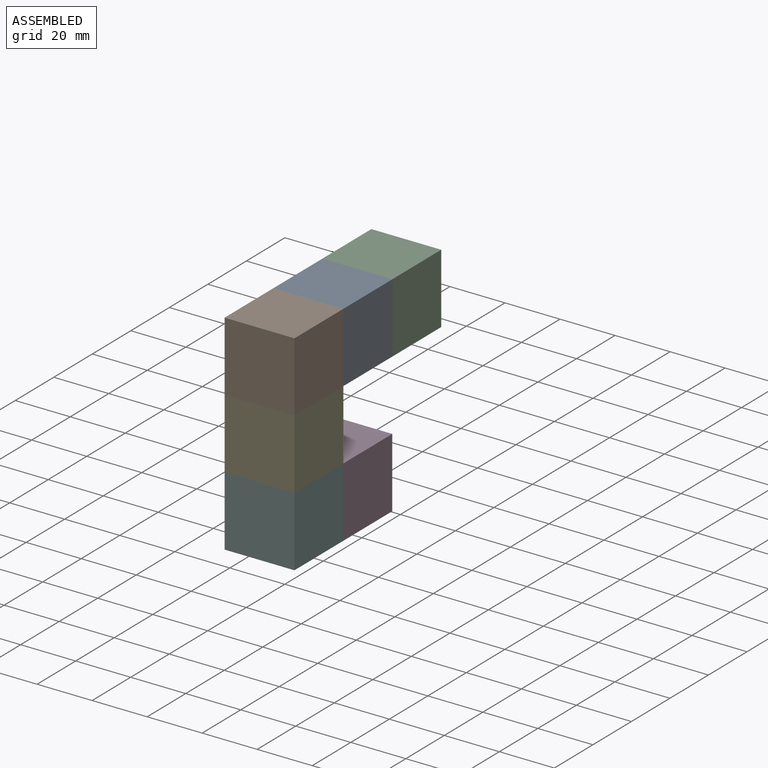
[diagram: assembled view]
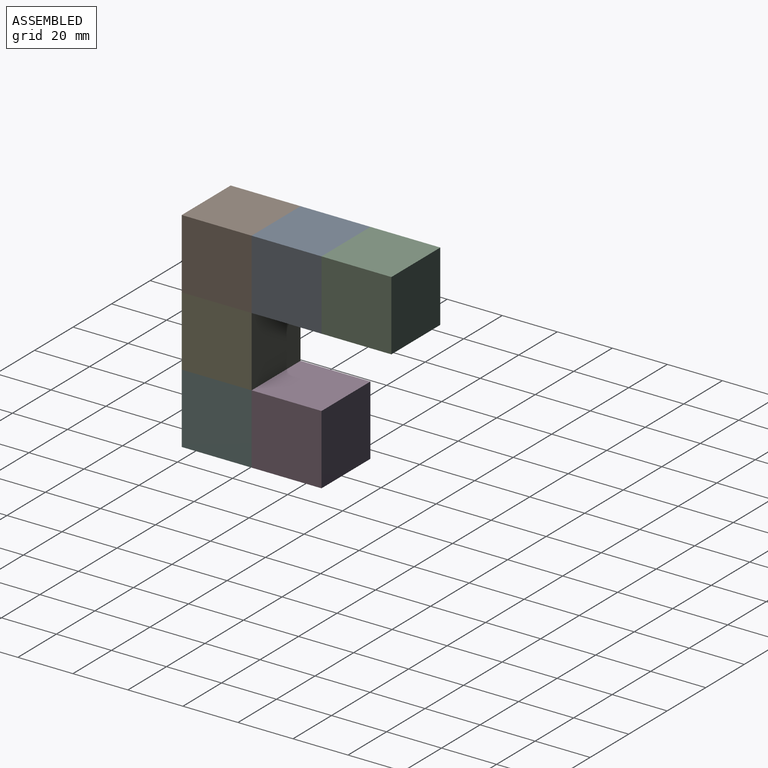
[diagram: assembled view, second angle]
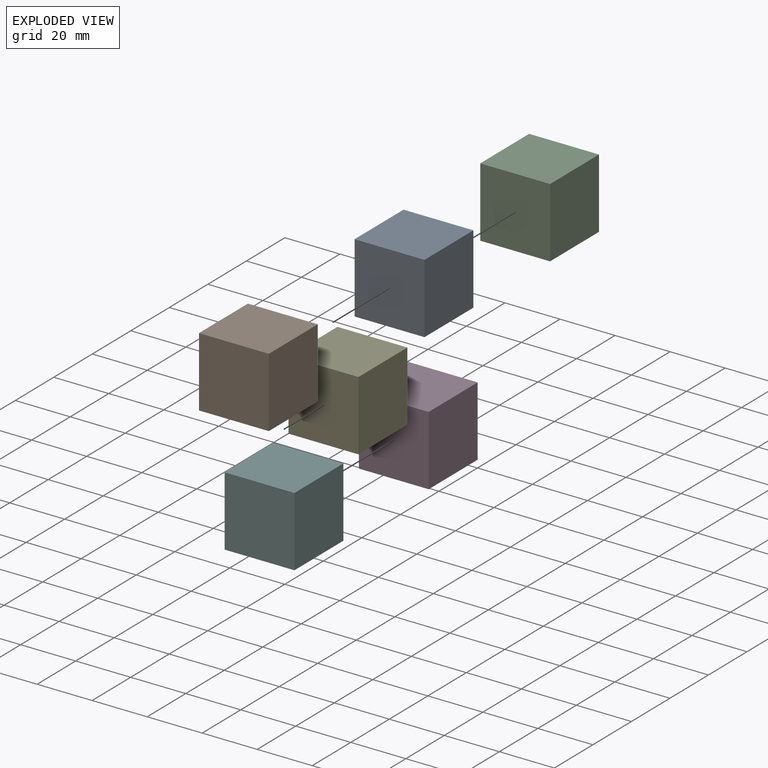
[diagram: exploded view]
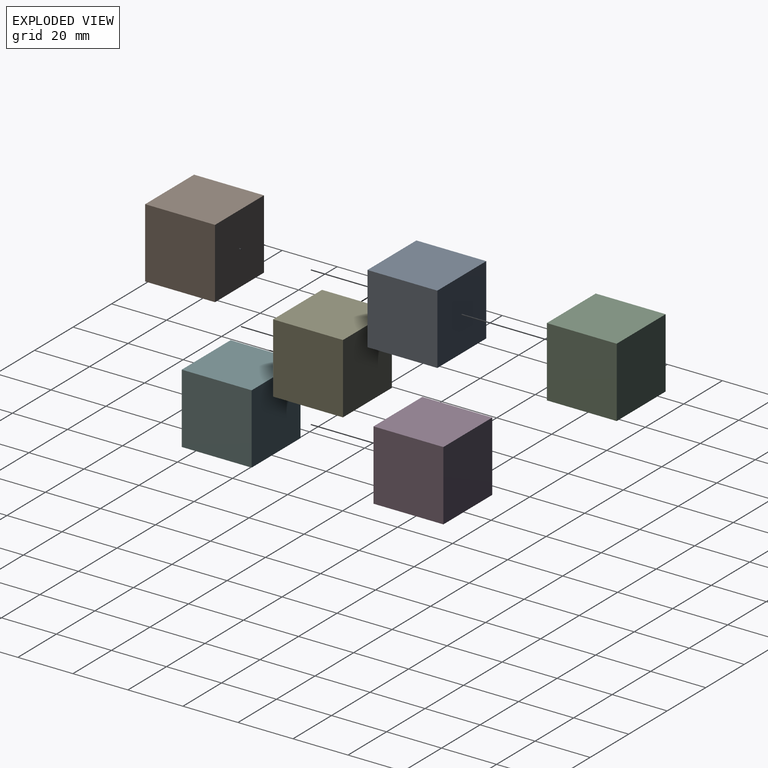
[diagram: exploded view, second angle]
ASSEMBLY  parts=6 mates=5
PART A: 6 faces, bbox 25.4x25.4x25.4 mm
  f0: plane 25.4x25.4mm, normal (-1,0,0), area 645.2mm2, adj f1,f3,f4,f5
  f1: plane 25.4x25.4mm, normal (0,0,-1), area 645.2mm2, adj f0,f2,f4,f5
  f2: plane 25.4x25.4mm, normal (1,0,0), area 645.2mm2, adj f1,f3,f4,f5
  f3: plane 25.4x25.4mm, normal (0,0,1), area 645.2mm2, adj f0,f2,f4,f5
  f4: plane 25.4x25.4mm, normal (0,-1,0), area 645.2mm2, adj f0,f1,f2,f3
  f5: plane 25.4x25.4mm, normal (0,1,0), area 645.2mm2, adj f0,f1,f2,f3
PART B: same geometry as A
PART C: same geometry as A
PART D: same geometry as A
PART E: same geometry as A
PART F: same geometry as A
PLACE A rot(axis=(-0.58,0.58,-0.58),120deg) t=(-14.37,20.07,50.6)mm
PLACE B rot(axis=(1,0,0),90deg) t=(-14.37,-5.33,76)mm
PLACE C rot(axis=(1,0,0),180deg) t=(-14.37,20.07,76)mm
PLACE D t=(-14.37,20.07,-0.2)mm
PLACE E rot(axis=(1,0,0),90deg) t=(-14.37,-5.33,50.6)mm
PLACE F rot(axis=(1,0,0),180deg) t=(-14.37,-30.73,25.2)mm
MATE fastened A.f2 <-> B.f1  axis (0,-1,0) through (-1.67,-5.33,63.3)mm
MATE fastened B.f4 <-> E.f5  axis (0,0,-1) through (-1.67,-18.03,50.6)mm
MATE fastened F.f4 <-> D.f4  axis (0,1,0) through (-1.67,-5.33,12.5)mm
MATE fastened E.f4 <-> F.f1  axis (0,0,-1) through (-1.67,-18.03,25.2)mm
MATE fastened C.f5 <-> A.f0  axis (0,-1,0) through (-1.67,20.07,63.3)mm
